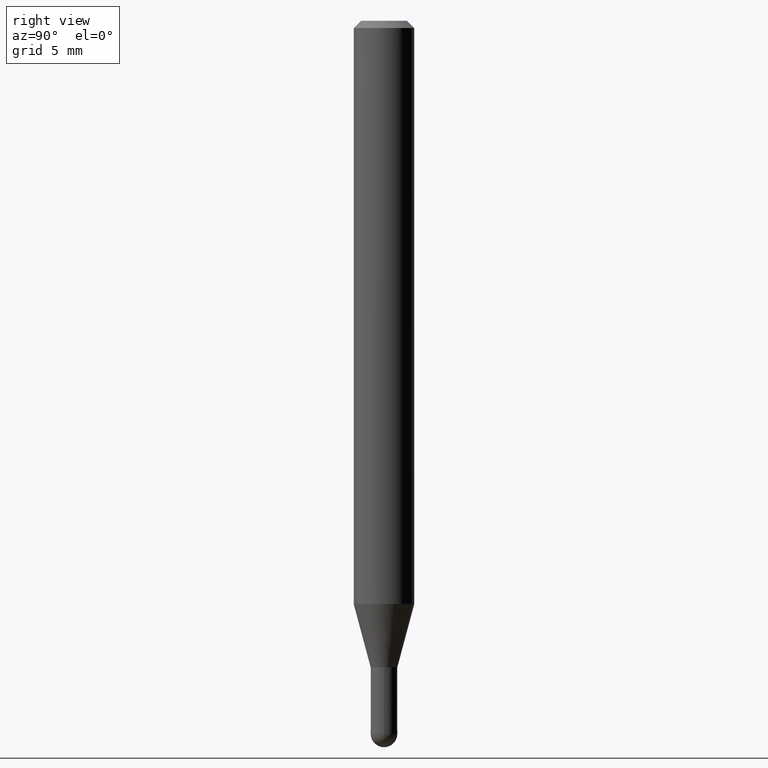
[diagram: clean part render]
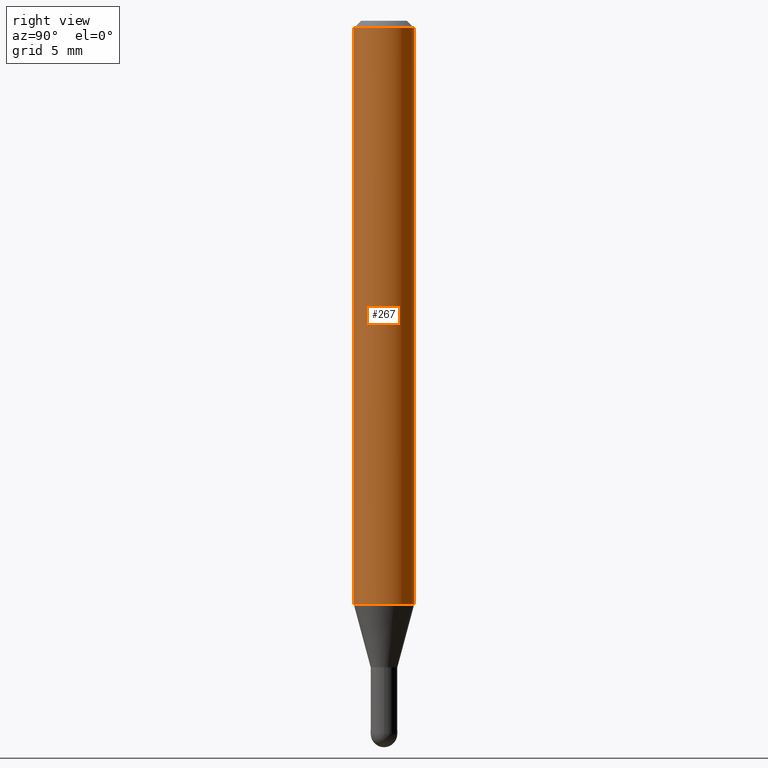
[diagram: same view with one face highlighted and labeled with its STEP entity id]
A machine part, right view. The second image highlights one B-rep face of the part: STEP entity #267.
In plain terms, the highlighted cylindrical surface (edge-blend (fillet) strip) has radius 1.5875 mm, axis along (-0, 0, 1).
Its self-contained STEP definition (entity closure, byte-faithful):
#3 = DIRECTION ( 'NONE',  ( -2.445481383962467429E-29, 3.491463326750125716E-15, 1.000000000000000000 ) ) ;
#7 = VERTEX_POINT ( 'NONE', #301 ) ;
#22 = CARTESIAN_POINT ( 'NONE',  ( 4.440892098500922971E-16, 0.06249999999999995143, -0.01500000000000022669 ) ) ;
#35 = CARTESIAN_POINT ( 'NONE',  ( 2.945284520502991775E-29, -4.205042392724609361E-15, -1.204378221735093346 ) ) ;
#46 = CYLINDRICAL_SURFACE ( 'NONE', #493, 0.06250000000000000000 ) ;
#59 = VECTOR ( 'NONE', #3, 39.37007874015748143 ) ;
#60 = VERTEX_POINT ( 'NONE', #411 ) ;
#71 = LINE ( 'NONE', #358, #59 ) ;
#81 = DIRECTION ( 'NONE',  ( -2.445481383962467149E-29, 3.491463326750125322E-15, 1.000000000000000000 ) ) ;
#83 = CARTESIAN_POINT ( 'NONE',  ( 0.000000000000000000, 0.000000000000000000, 0.000000000000000000 ) ) ;
#86 = ORIENTED_EDGE ( 'NONE', *, *, #360, .F. ) ;
#117 = CARTESIAN_POINT ( 'NONE',  ( 3.668222075943703298E-31, -5.237194990125190917E-17, -0.01500000000000000812 ) ) ;
#119 = ORIENTED_EDGE ( 'NONE', *, *, #253, .T. ) ;
#134 = CIRCLE ( 'NONE', #437, 0.06250000000000000000 ) ;
#175 = CARTESIAN_POINT ( 'NONE',  ( -4.364351673553912750E-16, -0.06250000000000005551, -0.01499999999999979128 ) ) ;
#180 = AXIS2_PLACEMENT_3D ( 'NONE', #117, #81, #469 ) ;
#194 = DIRECTION ( 'NONE',  ( -6.982962677686265922E-15, -1.000000000000000000, 3.491463326750125322E-15 ) ) ;
#204 = DIRECTION ( 'NONE',  ( -2.445481383962467149E-29, 3.491463326750125322E-15, 1.000000000000000000 ) ) ;
#213 = VECTOR ( 'NONE', #363, 39.37007874015748143 ) ;
#220 = CIRCLE ( 'NONE', #180, 0.06250000000000000000 ) ;
#244 = ORIENTED_EDGE ( 'NONE', *, *, #333, .T. ) ;
#253 = EDGE_CURVE ( 'NONE', #60, #7, #134, .T. ) ;
#267 = ADVANCED_FACE ( 'NONE', ( #356 ), #46, .T. ) ;
#289 = ORIENTED_EDGE ( 'NONE', *, *, #375, .F. ) ;
#301 = CARTESIAN_POINT ( 'NONE',  ( 4.440892098500917054E-16, 0.06249999999999575340, -1.204378221735093790 ) ) ;
#315 = CARTESIAN_POINT ( 'NONE',  ( -4.364351673553916201E-16, -0.06250000000000000000, 2.182164579218828326E-16 ) ) ;
#318 = DIRECTION ( 'NONE',  ( -2.445481383962467149E-29, 3.491463326750125322E-15, 1.000000000000000000 ) ) ;
#333 = EDGE_CURVE ( 'NONE', #7, #417, #71, .T. ) ;
#356 = FACE_OUTER_BOUND ( 'NONE', #487, .T. ) ;
#358 = CARTESIAN_POINT ( 'NONE',  ( 4.440892098500625669E-16, 0.06250000000000000000, -2.182164579218828326E-16 ) ) ;
#360 = EDGE_CURVE ( 'NONE', #60, #422, #476, .T. ) ;
#363 = DIRECTION ( 'NONE',  ( -2.445481383962467429E-29, 3.491463326750125716E-15, 1.000000000000000000 ) ) ;
#375 = EDGE_CURVE ( 'NONE', #422, #417, #220, .T. ) ;
#396 = DIRECTION ( 'NONE',  ( -6.982962677686265922E-15, -1.000000000000000000, 4.370956789862821150E-15 ) ) ;
#411 = CARTESIAN_POINT ( 'NONE',  ( -4.364351673553623336E-16, -0.06250000000000421885, -1.204378221735093124 ) ) ;
#417 = VERTEX_POINT ( 'NONE', #22 ) ;
#422 = VERTEX_POINT ( 'NONE', #175 ) ;
#437 = AXIS2_PLACEMENT_3D ( 'NONE', #35, #318, #396 ) ;
#469 = DIRECTION ( 'NONE',  ( -6.982962677686265922E-15, -1.000000000000000000, 3.483106191921935554E-15 ) ) ;
#476 = LINE ( 'NONE', #315, #213 ) ;
#487 = EDGE_LOOP ( 'NONE', ( #119, #244, #289, #86 ) ) ;
#493 = AXIS2_PLACEMENT_3D ( 'NONE', #83, #204, #194 ) ;